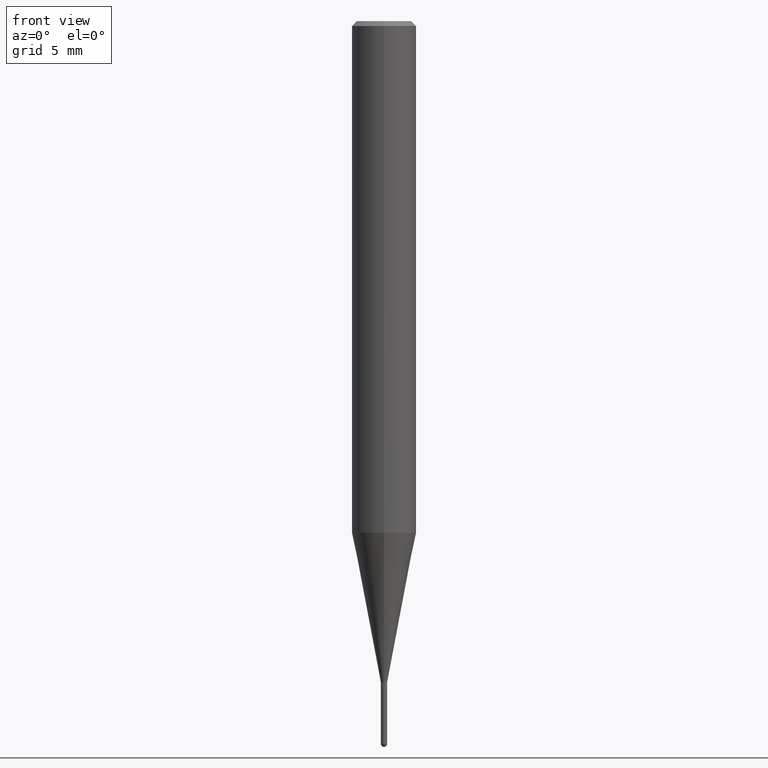
[diagram: clean part render]
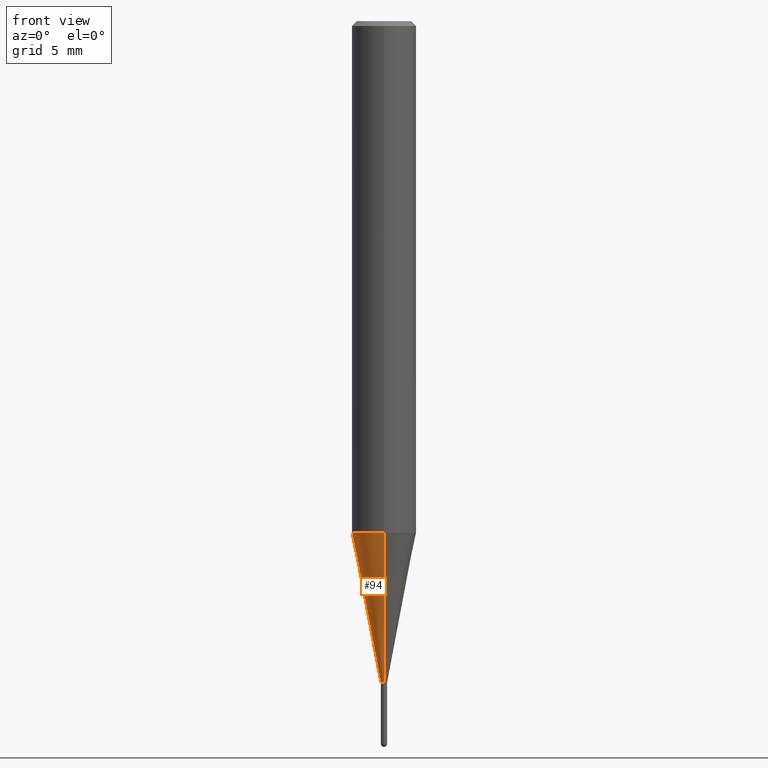
[diagram: same view with one face highlighted and labeled with its STEP entity id]
A machine part, front view. The second image highlights one B-rep face of the part: STEP entity #94.
In plain terms, the highlighted conical surface has half-angle 11 deg.
Its self-contained STEP definition (entity closure, byte-faithful):
#94=ADVANCED_FACE('',(#235),#236,.T.);
#106=EDGE_CURVE('',#118,#170,#248,.T.);
#118=VERTEX_POINT('',#262);
#134=VERTEX_POINT('',#280);
#140=EDGE_CURVE('',#150,#170,#286,.T.);
#150=VERTEX_POINT('',#297);
#164=EDGE_CURVE('',#134,#150,#313,.T.);
#170=VERTEX_POINT('',#321);
#178=EDGE_CURVE('',#118,#134,#329,.T.);
#235=FACE_OUTER_BOUND('',#385,.T.);
#236=CONICAL_SURFACE('',#386,1.09745,0.191984604054908);
#248=CIRCLE('',#403,0.19495);
#262=CARTESIAN_POINT('',(2.38737008677672E-017,-0.19495,-41.0));
#280=CARTESIAN_POINT('',(2.44915147732706E-016,-1.99995,-31.714));
#286=LINE('',#455,#456);
#297=CARTESIAN_POINT('',(0.0,1.99995,-31.714));
#313=CIRCLE('',#485,1.99995);
#321=CARTESIAN_POINT('',(0.0,0.19495,-41.0));
#329=LINE('',#503,#504);
#385=EDGE_LOOP('',(#560,#561,#562,#563));
#386=AXIS2_PLACEMENT_3D('',#564,#565,#566);
#403=AXIS2_PLACEMENT_3D('',#579,#580,#581);
#455=CARTESIAN_POINT('',(-1.34394424300237E-016,1.09745,-36.357));
#456=VECTOR('',#628,1.0);
#485=AXIS2_PLACEMENT_3D('',#656,#657,#658);
#503=CARTESIAN_POINT('',(1.34394424300237E-016,-1.09745,-36.357));
#504=VECTOR('',#670,1.0);
#560=ORIENTED_EDGE('',*,*,#140,.T.);
#561=ORIENTED_EDGE('',*,*,#106,.F.);
#562=ORIENTED_EDGE('',*,*,#178,.T.);
#563=ORIENTED_EDGE('',*,*,#164,.T.);
#564=CARTESIAN_POINT('',(0.0,0.0,-36.357));
#565=DIRECTION('',(-0.0,-0.0,1.0));
#566=DIRECTION('',(0.0,1.0,0.0));
#579=CARTESIAN_POINT('',(0.0,0.0,-41.0));
#580=DIRECTION('',(0.0,0.0,-1.0));
#581=DIRECTION('',(0.0,1.0,0.0));
#628=DIRECTION('',(2.33663968307108E-017,-0.190807411359389,-0.981627491348082));
#656=CARTESIAN_POINT('',(0.0,0.0,-31.714));
#657=DIRECTION('',(0.0,0.0,-1.0));
#658=DIRECTION('',(0.0,1.0,0.0));
#670=DIRECTION('',(2.33663968307108E-017,-0.190807411359389,0.981627491348082));